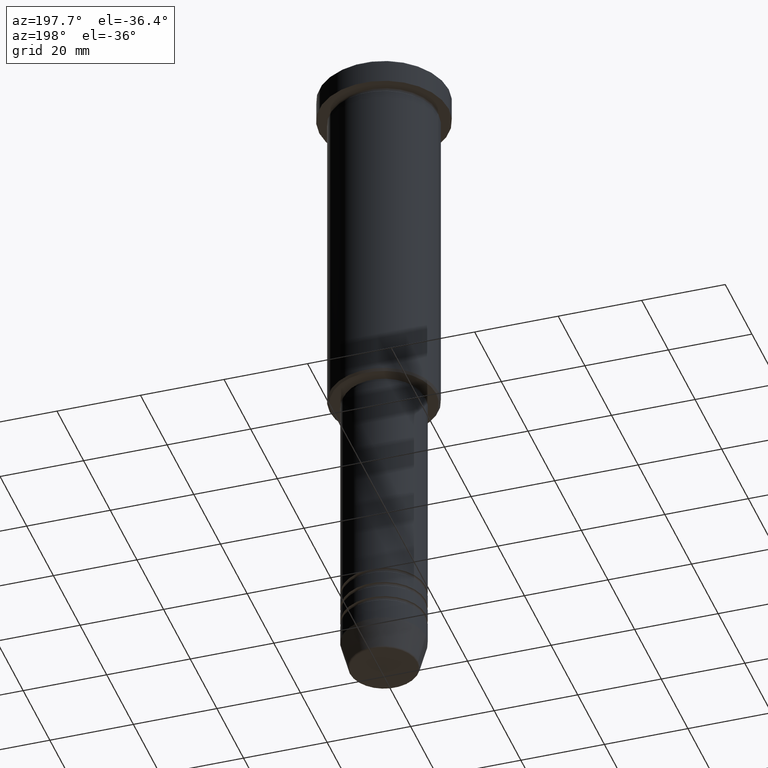
[diagram: clean part render]
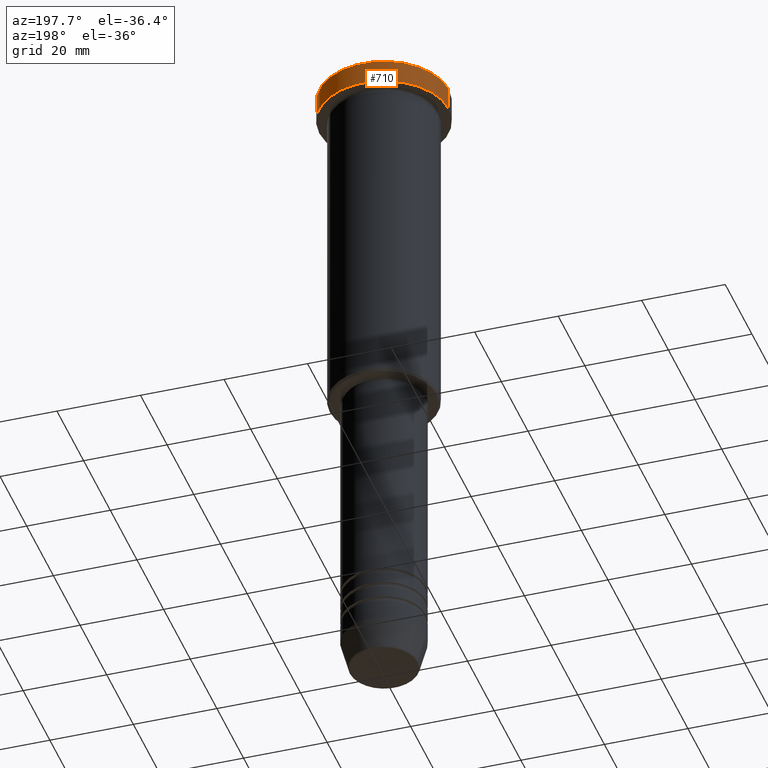
[diagram: same view with one face highlighted and labeled with its STEP entity id]
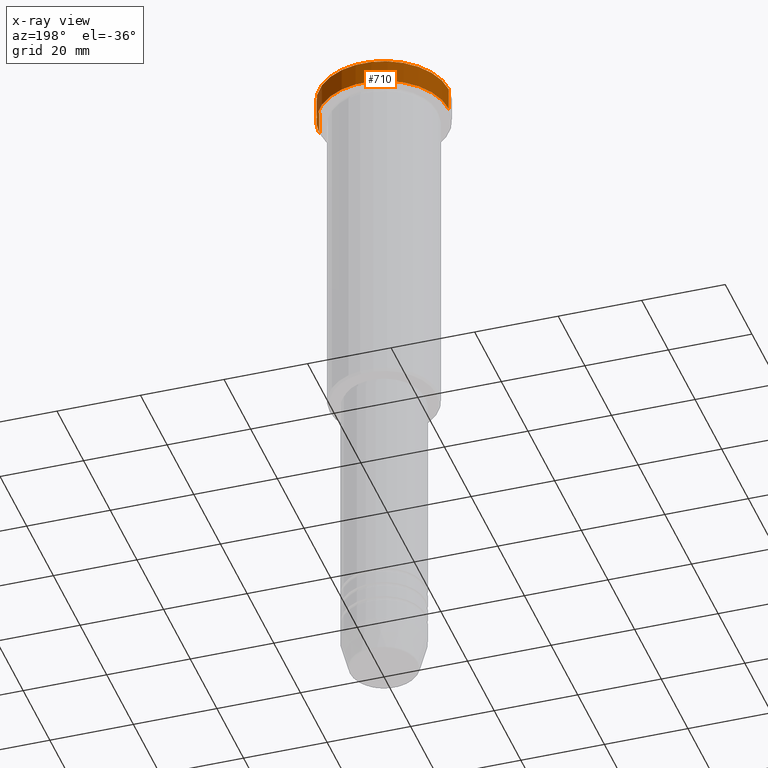
[diagram: x-ray of the same camera — body ghosted, the highlighted face saturated]
A machine part, auxiliary view. The second image highlights one B-rep face of the part: STEP entity #710.
The next image is the same camera in x-ray: the body ghosted, the highlighted face saturated — about 0% of this face is hidden behind the body in this view.
In plain terms, the highlighted cylindrical surface (partial cylindrical patch) has radius 15.5 mm, axis along (-0, -0, 1).
Its self-contained STEP definition (entity closure, byte-faithful):
#40 = LINE ( 'NONE', #223, #71 ) ;
#71 = VECTOR ( 'NONE', #608, 1000.000000000000000 ) ;
#125 = CARTESIAN_POINT ( 'NONE',  ( -15.50000000000000000, 1.898202538678397557E-15, -0.4999999999999848455 ) ) ;
#145 = CARTESIAN_POINT ( 'NONE',  ( -15.50000000000000000, 1.898202538678397557E-15, 0.000000000000000000 ) ) ;
#146 = AXIS2_PLACEMENT_3D ( 'NONE', #392, #1029, #653 ) ;
#196 = CARTESIAN_POINT ( 'NONE',  ( 0.000000000000000000, 0.000000000000000000, -5.999999999999995559 ) ) ;
#206 = CIRCLE ( 'NONE', #455, 15.50000000000000000 ) ;
#218 = ORIENTED_EDGE ( 'NONE', *, *, #885, .F. ) ;
#223 = CARTESIAN_POINT ( 'NONE',  ( 15.50000000000000000, 0.000000000000000000, 0.000000000000000000 ) ) ;
#261 = CARTESIAN_POINT ( 'NONE',  ( 15.50000000000000000, 0.000000000000000000, -0.4999999999999848455 ) ) ;
#361 = CARTESIAN_POINT ( 'NONE',  ( 0.000000000000000000, 0.000000000000000000, -0.4999999999999848455 ) ) ;
#392 = CARTESIAN_POINT ( 'NONE',  ( 0.000000000000000000, 0.000000000000000000, 0.000000000000000000 ) ) ;
#455 = AXIS2_PLACEMENT_3D ( 'NONE', #196, #1117, #557 ) ;
#475 = AXIS2_PLACEMENT_3D ( 'NONE', #361, #727, #1087 ) ;
#507 = VERTEX_POINT ( 'NONE', #261 ) ;
#512 = DIRECTION ( 'NONE',  ( -0.000000000000000000, -0.000000000000000000, 1.000000000000000000 ) ) ;
#520 = VERTEX_POINT ( 'NONE', #825 ) ;
#557 = DIRECTION ( 'NONE',  ( 1.000000000000000000, 0.000000000000000000, 0.000000000000000000 ) ) ;
#559 = EDGE_LOOP ( 'NONE', ( #1064, #980, #899, #218 ) ) ;
#597 = LINE ( 'NONE', #145, #840 ) ;
#599 = VERTEX_POINT ( 'NONE', #125 ) ;
#608 = DIRECTION ( 'NONE',  ( -0.000000000000000000, -0.000000000000000000, 1.000000000000000000 ) ) ;
#653 = DIRECTION ( 'NONE',  ( 1.000000000000000000, 0.000000000000000000, 0.000000000000000000 ) ) ;
#710 = ADVANCED_FACE ( 'NONE', ( #1018 ), #848, .T. ) ;
#726 = EDGE_CURVE ( 'NONE', #520, #1096, #206, .T. ) ;
#727 = DIRECTION ( 'NONE',  ( 0.000000000000000000, 0.000000000000000000, -1.000000000000000000 ) ) ;
#825 = CARTESIAN_POINT ( 'NONE',  ( 15.50000000000000000, 0.000000000000000000, -5.999999999999995559 ) ) ;
#837 = CARTESIAN_POINT ( 'NONE',  ( -15.50000000000000000, 1.898202538678397557E-15, -5.999999999999995559 ) ) ;
#840 = VECTOR ( 'NONE', #512, 1000.000000000000000 ) ;
#848 = CYLINDRICAL_SURFACE ( 'NONE', #146, 15.50000000000000000 ) ;
#864 = EDGE_CURVE ( 'NONE', #1096, #599, #597, .T. ) ;
#885 = EDGE_CURVE ( 'NONE', #520, #507, #40, .T. ) ;
#899 = ORIENTED_EDGE ( 'NONE', *, *, #967, .T. ) ;
#967 = EDGE_CURVE ( 'NONE', #599, #507, #1155, .T. ) ;
#980 = ORIENTED_EDGE ( 'NONE', *, *, #864, .T. ) ;
#1018 = FACE_OUTER_BOUND ( 'NONE', #559, .T. ) ;
#1029 = DIRECTION ( 'NONE',  ( -0.000000000000000000, -0.000000000000000000, 1.000000000000000000 ) ) ;
#1064 = ORIENTED_EDGE ( 'NONE', *, *, #726, .T. ) ;
#1087 = DIRECTION ( 'NONE',  ( 1.000000000000000000, 0.000000000000000000, 0.000000000000000000 ) ) ;
#1096 = VERTEX_POINT ( 'NONE', #837 ) ;
#1117 = DIRECTION ( 'NONE',  ( -0.000000000000000000, -0.000000000000000000, 1.000000000000000000 ) ) ;
#1155 = CIRCLE ( 'NONE', #475, 15.50000000000000000 ) ;